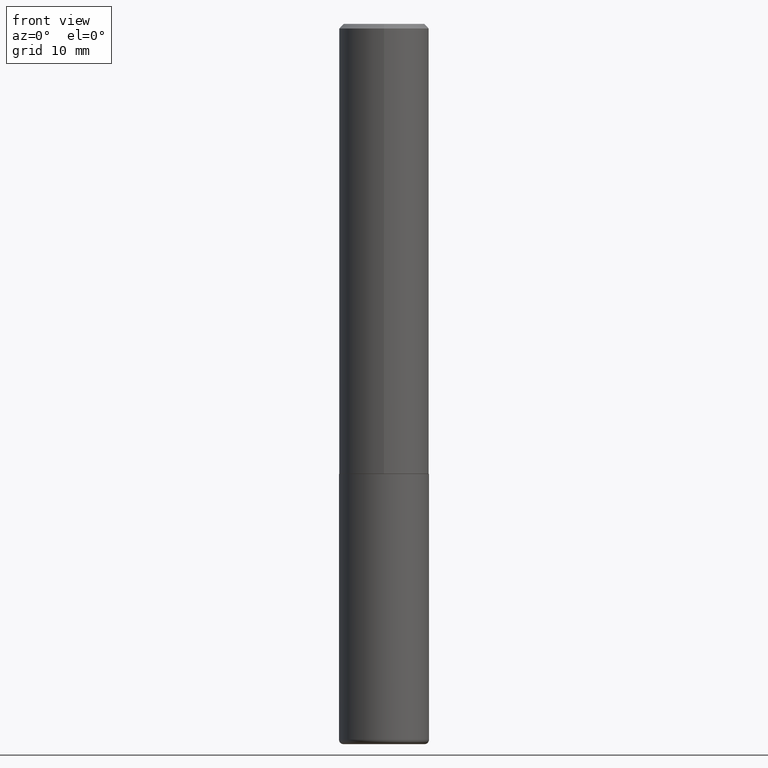
[diagram: clean part render]
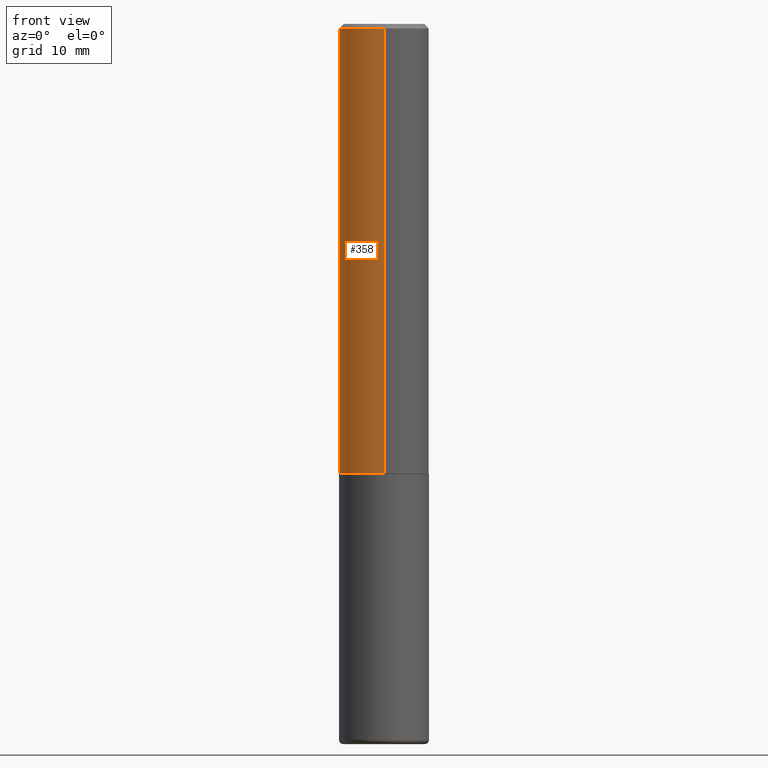
[diagram: same view with one face highlighted and labeled with its STEP entity id]
A machine part, front view. The second image highlights one B-rep face of the part: STEP entity #358.
In plain terms, the highlighted cylindrical surface (partial cylindrical patch) has radius 5 mm, axis along (-0, 0, 1).
Its self-contained STEP definition (entity closure, byte-faithful):
#1 = EDGE_CURVE ( 'NONE', #213, #373, #341, .T. ) ;
#21 = FACE_OUTER_BOUND ( 'NONE', #77, .T. ) ;
#41 = DIRECTION ( 'NONE',  ( -2.445268841296851437E-29, 3.491767699944464545E-15, 1.000000000000000000 ) ) ;
#68 = LINE ( 'NONE', #264, #87 ) ;
#74 = DIRECTION ( 'NONE',  ( -6.982962677686265133E-15, -1.000000000000000000, 3.491137977679279029E-15 ) ) ;
#77 = EDGE_LOOP ( 'NONE', ( #403, #206, #162, #190 ) ) ;
#84 = CYLINDRICAL_SURFACE ( 'NONE', #90, 0.1968500000000001360 ) ;
#85 = CARTESIAN_POINT ( 'NONE',  ( -1.374596203102542397E-15, -0.1968500000000001360, 6.873544717340683232E-16 ) ) ;
#87 = VECTOR ( 'NONE', #230, 39.37007874015748143 ) ;
#90 = AXIS2_PLACEMENT_3D ( 'NONE', #210, #219, #116 ) ;
#95 = VERTEX_POINT ( 'NONE', #411 ) ;
#105 = DIRECTION ( 'NONE',  ( -2.445268841296851437E-29, 3.491767699944464545E-15, 1.000000000000000000 ) ) ;
#107 = CARTESIAN_POINT ( 'NONE',  ( 4.890537682593712927E-31, -6.983535399888942699E-17, -0.02000000000000004205 ) ) ;
#116 = DIRECTION ( 'NONE',  ( -6.982962677686265922E-15, -1.000000000000000000, 3.491767699944464545E-15 ) ) ;
#129 = CARTESIAN_POINT ( 'NONE',  ( 1.374596203102542200E-15, 0.1968499999999999694, -0.02000000000000072900 ) ) ;
#130 = CIRCLE ( 'NONE', #227, 0.1968500000000000527 ) ;
#162 = ORIENTED_EDGE ( 'NONE', *, *, #1, .T. ) ;
#168 = DIRECTION ( 'NONE',  ( -6.982962677686265922E-15, -1.000000000000000000, 4.163344669033670112E-15 ) ) ;
#190 = ORIENTED_EDGE ( 'NONE', *, *, #240, .F. ) ;
#196 = CARTESIAN_POINT ( 'NONE',  ( -1.374596203102495065E-15, -0.1968500000000071026, -1.967499999999998916 ) ) ;
#197 = EDGE_CURVE ( 'NONE', #95, #207, #68, .T. ) ;
#204 = VECTOR ( 'NONE', #218, 39.37007874015748143 ) ;
#206 = ORIENTED_EDGE ( 'NONE', *, *, #262, .T. ) ;
#207 = VERTEX_POINT ( 'NONE', #129 ) ;
#210 = CARTESIAN_POINT ( 'NONE',  ( 0.000000000000000000, 0.000000000000000000, 0.000000000000000000 ) ) ;
#213 = VERTEX_POINT ( 'NONE', #196 ) ;
#218 = DIRECTION ( 'NONE',  ( -2.445268841296851437E-29, 3.491767699944464940E-15, 1.000000000000000000 ) ) ;
#219 = DIRECTION ( 'NONE',  ( -2.445268841296851437E-29, 3.491767699944464545E-15, 1.000000000000000000 ) ) ;
#227 = AXIS2_PLACEMENT_3D ( 'NONE', #107, #105, #74 ) ;
#230 = DIRECTION ( 'NONE',  ( -2.445268841296851437E-29, 3.491767699944464940E-15, 1.000000000000000000 ) ) ;
#232 = CARTESIAN_POINT ( 'NONE',  ( 4.811066445251554069E-29, -6.870052949640732965E-15, -1.967499999999999805 ) ) ;
#240 = EDGE_CURVE ( 'NONE', #207, #373, #130, .T. ) ;
#262 = EDGE_CURVE ( 'NONE', #95, #213, #407, .T. ) ;
#264 = CARTESIAN_POINT ( 'NONE',  ( 1.398703375343757985E-15, 0.1968500000000001360, -6.873544717340683232E-16 ) ) ;
#304 = AXIS2_PLACEMENT_3D ( 'NONE', #232, #41, #168 ) ;
#341 = LINE ( 'NONE', #85, #204 ) ;
#345 = CARTESIAN_POINT ( 'NONE',  ( -1.350489030861325626E-15, -0.1968500000000001082, -0.01999999999999935510 ) ) ;
#358 = ADVANCED_FACE ( 'NONE', ( #21 ), #84, .T. ) ;
#373 = VERTEX_POINT ( 'NONE', #345 ) ;
#403 = ORIENTED_EDGE ( 'NONE', *, *, #197, .F. ) ;
#407 = CIRCLE ( 'NONE', #304, 0.1968500000000002470 ) ;
#411 = CARTESIAN_POINT ( 'NONE',  ( 1.398703375343782440E-15, 0.1968499999999933914, -1.967500000000000471 ) ) ;